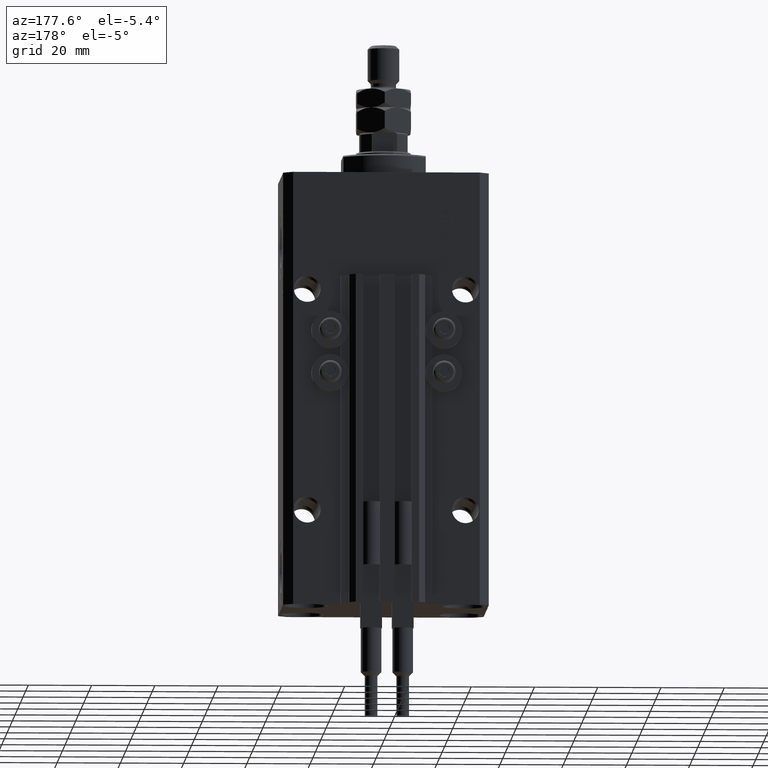
[diagram: clean part render]
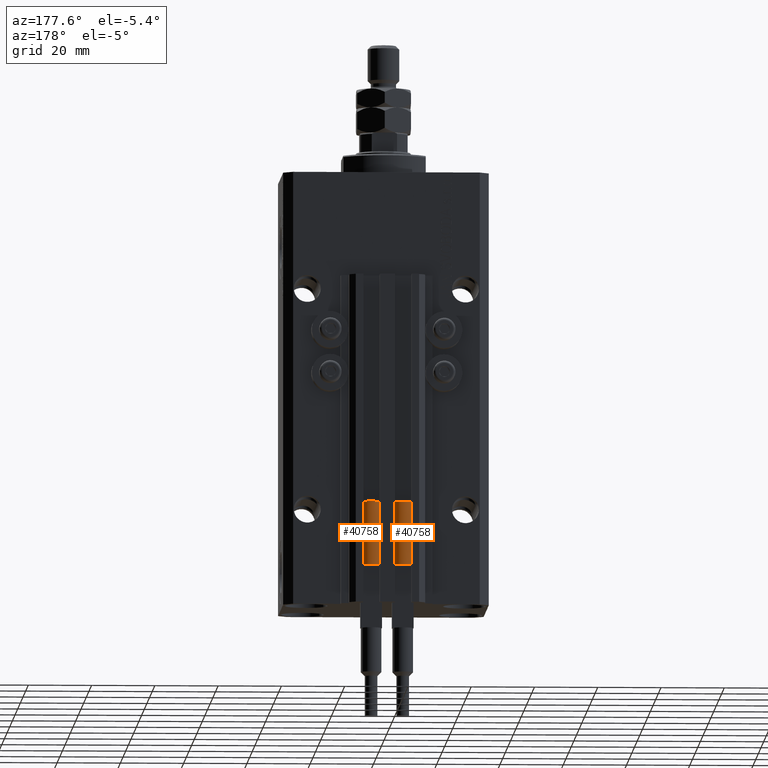
[diagram: same view with one multi-face feature highlighted, each face labeled with its STEP entity id]
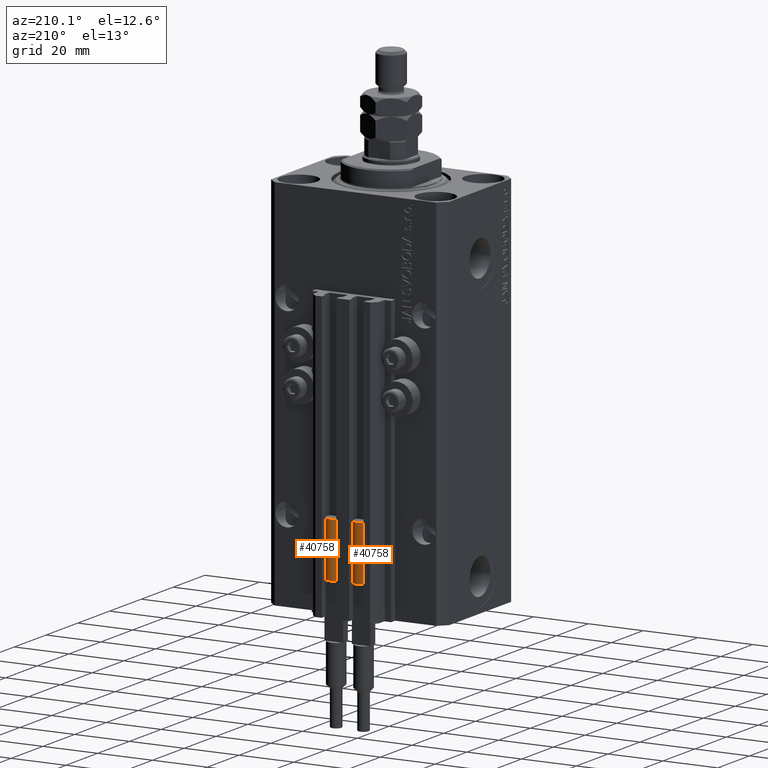
[diagram: same view with one multi-face feature highlighted, each face labeled with its STEP entity id]
A machine part, auxiliary view. The highlighted faces form ONE feature: a constant-radius fillet chain: 2 tangent blend faces with common blend radius 3.4 mm. The faces share edges in the B-rep.
A second angle (auxiliary view) of the same feature is appended — it is thin or edge-on in the first view.
Their STEP definitions:
[1] entity #40758 (Cylinder):
#603 = VERTEX_POINT ( 'NONE', #36167 ) ;
#828 = AXIS2_PLACEMENT_3D ( 'NONE', #5209, #8265, #21069 ) ;
#1839 = VERTEX_POINT ( 'NONE', #47384 ) ;
#2763 = DIRECTION ( 'NONE',  ( -0.000000000000000000, -0.000000000000000000, -1.000000000000000000 ) ) ;
#3000 = VERTEX_POINT ( 'NONE', #24529 ) ;
#4591 = ORIENTED_EDGE ( 'NONE', *, *, #42441, .T. ) ;
#4736 = EDGE_CURVE ( 'NONE', #3000, #44063, #11583, .T. ) ;
#5209 = CARTESIAN_POINT ( 'NONE',  ( 0.000000000000000000, 0.000000000000000000, 0.000000000000000000 ) ) ;
#5914 = CARTESIAN_POINT ( 'NONE',  ( 3.400000000000000355, 4.163799117101001052E-16, 0.000000000000000000 ) ) ;
#6395 = DIRECTION ( 'NONE',  ( -1.000000000000000000, 0.000000000000000000, 0.000000000000000000 ) ) ;
#7000 = AXIS2_PLACEMENT_3D ( 'NONE', #22715, #7600, #10928 ) ;
#7600 = DIRECTION ( 'NONE',  ( 0.000000000000000000, 0.000000000000000000, 1.000000000000000000 ) ) ;
#8265 = DIRECTION ( 'NONE',  ( 0.000000000000000000, 0.000000000000000000, 1.000000000000000000 ) ) ;
#8395 = DIRECTION ( 'NONE',  ( 1.000000000000000000, 0.000000000000000000, 0.000000000000000000 ) ) ;
#8897 = DIRECTION ( 'NONE',  ( 0.000000000000000000, 0.000000000000000000, 1.000000000000000000 ) ) ;
#9937 = ORIENTED_EDGE ( 'NONE', *, *, #40756, .T. ) ;
#10471 = FACE_OUTER_BOUND ( 'NONE', #17900, .T. ) ;
#10928 = DIRECTION ( 'NONE',  ( 1.000000000000000000, 0.000000000000000000, 0.000000000000000000 ) ) ;
#11583 = CIRCLE ( 'NONE', #27952, 3.400000000000000355 ) ;
#12227 = CIRCLE ( 'NONE', #828, 3.400000000000000355 ) ;
#12357 = CARTESIAN_POINT ( 'NONE',  ( 0.000000000000000000, 0.000000000000000000, 20.00000000000000000 ) ) ;
#12607 = DIRECTION ( 'NONE',  ( 0.000000000000000000, 0.000000000000000000, 1.000000000000000000 ) ) ;
#13092 = EDGE_CURVE ( 'NONE', #603, #17001, #47889, .T. ) ;
#17001 = VERTEX_POINT ( 'NONE', #46244 ) ;
#17900 = EDGE_LOOP ( 'NONE', ( #24691, #9937, #4591, #44819, #26183, #43577 ) ) ;
#21069 = DIRECTION ( 'NONE',  ( 1.000000000000000000, 0.000000000000000000, 0.000000000000000000 ) ) ;
#22715 = CARTESIAN_POINT ( 'NONE',  ( 0.000000000000000000, 0.000000000000000000, 20.00000000000000000 ) ) ;
#24529 = CARTESIAN_POINT ( 'NONE',  ( 3.400000000000000355, 0.000000000000000000, 20.00000000000000000 ) ) ;
#24691 = ORIENTED_EDGE ( 'NONE', *, *, #4736, .F. ) ;
#24865 = CIRCLE ( 'NONE', #37129, 3.400000000000000355 ) ;
#26098 = DIRECTION ( 'NONE',  ( -0.000000000000000000, -0.000000000000000000, -1.000000000000000000 ) ) ;
#26183 = ORIENTED_EDGE ( 'NONE', *, *, #29531, .F. ) ;
#26355 = CYLINDRICAL_SURFACE ( 'NONE', #30163, 3.400000000000000355 ) ;
#26987 = EDGE_CURVE ( 'NONE', #44063, #1839, #24865, .T. ) ;
#27952 = AXIS2_PLACEMENT_3D ( 'NONE', #44000, #8897, #8395 ) ;
#28414 = CARTESIAN_POINT ( 'NONE',  ( -3.400000000000000355, 0.000000000000000000, 20.00000000000000000 ) ) ;
#29346 = VECTOR ( 'NONE', #26098, 1000.000000000000000 ) ;
#29531 = EDGE_CURVE ( 'NONE', #1839, #603, #46266, .T. ) ;
#29690 = LINE ( 'NONE', #37382, #29346 ) ;
#29911 = VECTOR ( 'NONE', #2763, 1000.000000000000000 ) ;
#30163 = AXIS2_PLACEMENT_3D ( 'NONE', #34296, #45819, #6395 ) ;
#31281 = VERTEX_POINT ( 'NONE', #5914 ) ;
#34296 = CARTESIAN_POINT ( 'NONE',  ( 0.000000000000000000, 0.000000000000000000, 20.00000000000000000 ) ) ;
#35599 = CARTESIAN_POINT ( 'NONE',  ( 3.051229260478471428, 1.500000000000000000, 20.00000000000000000 ) ) ;
#36167 = CARTESIAN_POINT ( 'NONE',  ( -3.399999999999999467, -4.915049848600952119E-16, 20.00000000000000000 ) ) ;
#37129 = AXIS2_PLACEMENT_3D ( 'NONE', #12357, #12607, #48225 ) ;
#37382 = CARTESIAN_POINT ( 'NONE',  ( 3.400000000000000355, 4.163799117101001052E-16, 20.00000000000000000 ) ) ;
#40756 = EDGE_CURVE ( 'NONE', #3000, #31281, #29690, .T. ) ;
#40758 = ADVANCED_FACE ( 'NONE', ( #10471 ), #26355, .T. ) ;
#42441 = EDGE_CURVE ( 'NONE', #31281, #17001, #12227, .T. ) ;
#43577 = ORIENTED_EDGE ( 'NONE', *, *, #26987, .F. ) ;
#44000 = CARTESIAN_POINT ( 'NONE',  ( 0.000000000000000000, 0.000000000000000000, 20.00000000000000000 ) ) ;
#44063 = VERTEX_POINT ( 'NONE', #35599 ) ;
#44819 = ORIENTED_EDGE ( 'NONE', *, *, #13092, .F. ) ;
#45819 = DIRECTION ( 'NONE',  ( -0.000000000000000000, -0.000000000000000000, -1.000000000000000000 ) ) ;
#46244 = CARTESIAN_POINT ( 'NONE',  ( -3.400000000000000355, 0.000000000000000000, 0.000000000000000000 ) ) ;
#46266 = CIRCLE ( 'NONE', #7000, 3.400000000000000355 ) ;
#47384 = CARTESIAN_POINT ( 'NONE',  ( -3.051229260478471428, 1.500000000000000000, 20.00000000000000000 ) ) ;
#47889 = LINE ( 'NONE', #28414, #29911 ) ;
#48225 = DIRECTION ( 'NONE',  ( 1.000000000000000000, 0.000000000000000000, 0.000000000000000000 ) ) ;
[2] entity #40758 (Cylinder):
#603 = VERTEX_POINT ( 'NONE', #36167 ) ;
#828 = AXIS2_PLACEMENT_3D ( 'NONE', #5209, #8265, #21069 ) ;
#1839 = VERTEX_POINT ( 'NONE', #47384 ) ;
#2763 = DIRECTION ( 'NONE',  ( -0.000000000000000000, -0.000000000000000000, -1.000000000000000000 ) ) ;
#3000 = VERTEX_POINT ( 'NONE', #24529 ) ;
#4591 = ORIENTED_EDGE ( 'NONE', *, *, #42441, .T. ) ;
#4736 = EDGE_CURVE ( 'NONE', #3000, #44063, #11583, .T. ) ;
#5209 = CARTESIAN_POINT ( 'NONE',  ( 0.000000000000000000, 0.000000000000000000, 0.000000000000000000 ) ) ;
#5914 = CARTESIAN_POINT ( 'NONE',  ( 3.400000000000000355, 4.163799117101001052E-16, 0.000000000000000000 ) ) ;
#6395 = DIRECTION ( 'NONE',  ( -1.000000000000000000, 0.000000000000000000, 0.000000000000000000 ) ) ;
#7000 = AXIS2_PLACEMENT_3D ( 'NONE', #22715, #7600, #10928 ) ;
#7600 = DIRECTION ( 'NONE',  ( 0.000000000000000000, 0.000000000000000000, 1.000000000000000000 ) ) ;
#8265 = DIRECTION ( 'NONE',  ( 0.000000000000000000, 0.000000000000000000, 1.000000000000000000 ) ) ;
#8395 = DIRECTION ( 'NONE',  ( 1.000000000000000000, 0.000000000000000000, 0.000000000000000000 ) ) ;
#8897 = DIRECTION ( 'NONE',  ( 0.000000000000000000, 0.000000000000000000, 1.000000000000000000 ) ) ;
#9937 = ORIENTED_EDGE ( 'NONE', *, *, #40756, .T. ) ;
#10471 = FACE_OUTER_BOUND ( 'NONE', #17900, .T. ) ;
#10928 = DIRECTION ( 'NONE',  ( 1.000000000000000000, 0.000000000000000000, 0.000000000000000000 ) ) ;
#11583 = CIRCLE ( 'NONE', #27952, 3.400000000000000355 ) ;
#12227 = CIRCLE ( 'NONE', #828, 3.400000000000000355 ) ;
#12357 = CARTESIAN_POINT ( 'NONE',  ( 0.000000000000000000, 0.000000000000000000, 20.00000000000000000 ) ) ;
#12607 = DIRECTION ( 'NONE',  ( 0.000000000000000000, 0.000000000000000000, 1.000000000000000000 ) ) ;
#13092 = EDGE_CURVE ( 'NONE', #603, #17001, #47889, .T. ) ;
#17001 = VERTEX_POINT ( 'NONE', #46244 ) ;
#17900 = EDGE_LOOP ( 'NONE', ( #24691, #9937, #4591, #44819, #26183, #43577 ) ) ;
#21069 = DIRECTION ( 'NONE',  ( 1.000000000000000000, 0.000000000000000000, 0.000000000000000000 ) ) ;
#22715 = CARTESIAN_POINT ( 'NONE',  ( 0.000000000000000000, 0.000000000000000000, 20.00000000000000000 ) ) ;
#24529 = CARTESIAN_POINT ( 'NONE',  ( 3.400000000000000355, 0.000000000000000000, 20.00000000000000000 ) ) ;
#24691 = ORIENTED_EDGE ( 'NONE', *, *, #4736, .F. ) ;
#24865 = CIRCLE ( 'NONE', #37129, 3.400000000000000355 ) ;
#26098 = DIRECTION ( 'NONE',  ( -0.000000000000000000, -0.000000000000000000, -1.000000000000000000 ) ) ;
#26183 = ORIENTED_EDGE ( 'NONE', *, *, #29531, .F. ) ;
#26355 = CYLINDRICAL_SURFACE ( 'NONE', #30163, 3.400000000000000355 ) ;
#26987 = EDGE_CURVE ( 'NONE', #44063, #1839, #24865, .T. ) ;
#27952 = AXIS2_PLACEMENT_3D ( 'NONE', #44000, #8897, #8395 ) ;
#28414 = CARTESIAN_POINT ( 'NONE',  ( -3.400000000000000355, 0.000000000000000000, 20.00000000000000000 ) ) ;
#29346 = VECTOR ( 'NONE', #26098, 1000.000000000000000 ) ;
#29531 = EDGE_CURVE ( 'NONE', #1839, #603, #46266, .T. ) ;
#29690 = LINE ( 'NONE', #37382, #29346 ) ;
#29911 = VECTOR ( 'NONE', #2763, 1000.000000000000000 ) ;
#30163 = AXIS2_PLACEMENT_3D ( 'NONE', #34296, #45819, #6395 ) ;
#31281 = VERTEX_POINT ( 'NONE', #5914 ) ;
#34296 = CARTESIAN_POINT ( 'NONE',  ( 0.000000000000000000, 0.000000000000000000, 20.00000000000000000 ) ) ;
#35599 = CARTESIAN_POINT ( 'NONE',  ( 3.051229260478471428, 1.500000000000000000, 20.00000000000000000 ) ) ;
#36167 = CARTESIAN_POINT ( 'NONE',  ( -3.399999999999999467, -4.915049848600952119E-16, 20.00000000000000000 ) ) ;
#37129 = AXIS2_PLACEMENT_3D ( 'NONE', #12357, #12607, #48225 ) ;
#37382 = CARTESIAN_POINT ( 'NONE',  ( 3.400000000000000355, 4.163799117101001052E-16, 20.00000000000000000 ) ) ;
#40756 = EDGE_CURVE ( 'NONE', #3000, #31281, #29690, .T. ) ;
#40758 = ADVANCED_FACE ( 'NONE', ( #10471 ), #26355, .T. ) ;
#42441 = EDGE_CURVE ( 'NONE', #31281, #17001, #12227, .T. ) ;
#43577 = ORIENTED_EDGE ( 'NONE', *, *, #26987, .F. ) ;
#44000 = CARTESIAN_POINT ( 'NONE',  ( 0.000000000000000000, 0.000000000000000000, 20.00000000000000000 ) ) ;
#44063 = VERTEX_POINT ( 'NONE', #35599 ) ;
#44819 = ORIENTED_EDGE ( 'NONE', *, *, #13092, .F. ) ;
#45819 = DIRECTION ( 'NONE',  ( -0.000000000000000000, -0.000000000000000000, -1.000000000000000000 ) ) ;
#46244 = CARTESIAN_POINT ( 'NONE',  ( -3.400000000000000355, 0.000000000000000000, 0.000000000000000000 ) ) ;
#46266 = CIRCLE ( 'NONE', #7000, 3.400000000000000355 ) ;
#47384 = CARTESIAN_POINT ( 'NONE',  ( -3.051229260478471428, 1.500000000000000000, 20.00000000000000000 ) ) ;
#47889 = LINE ( 'NONE', #28414, #29911 ) ;
#48225 = DIRECTION ( 'NONE',  ( 1.000000000000000000, 0.000000000000000000, 0.000000000000000000 ) ) ;